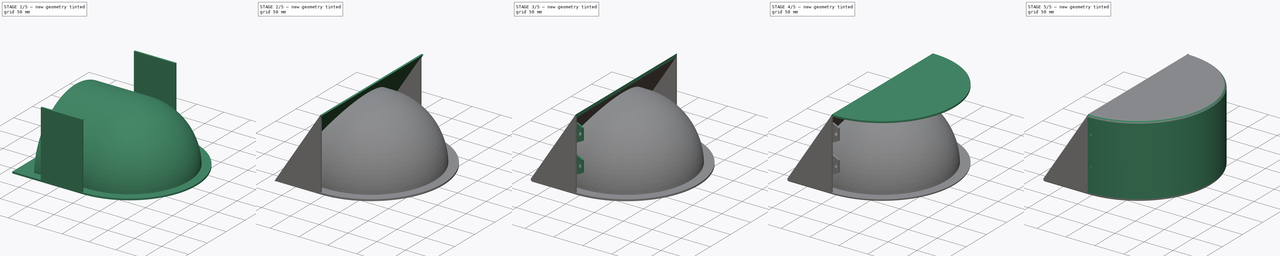
[diagram: build sequence overview — one tinted view per stage of 5, left to right]
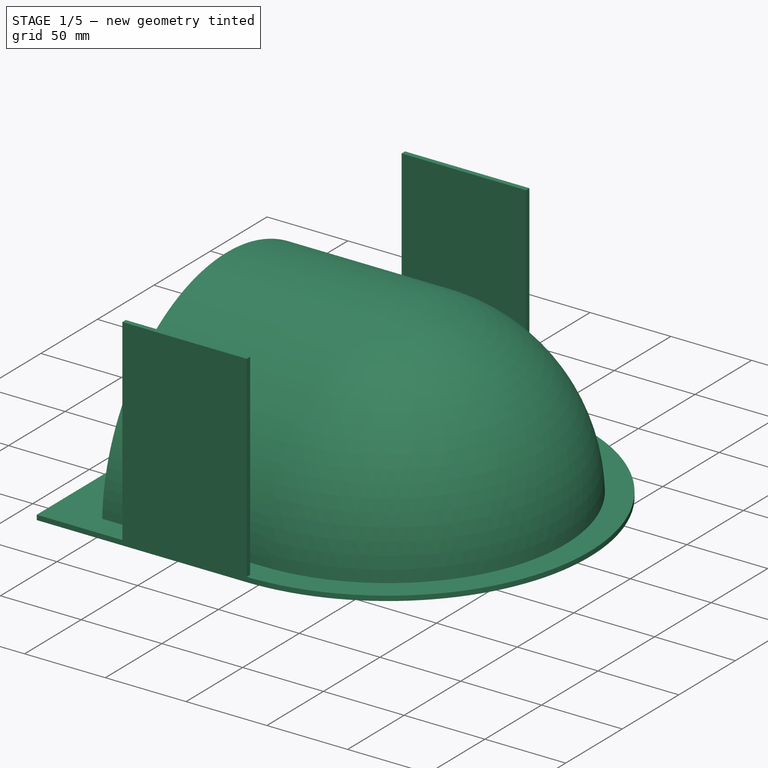
[diagram: stage 1 of 5 — iso view after this stage's code; geometry added in this stage tinted green]
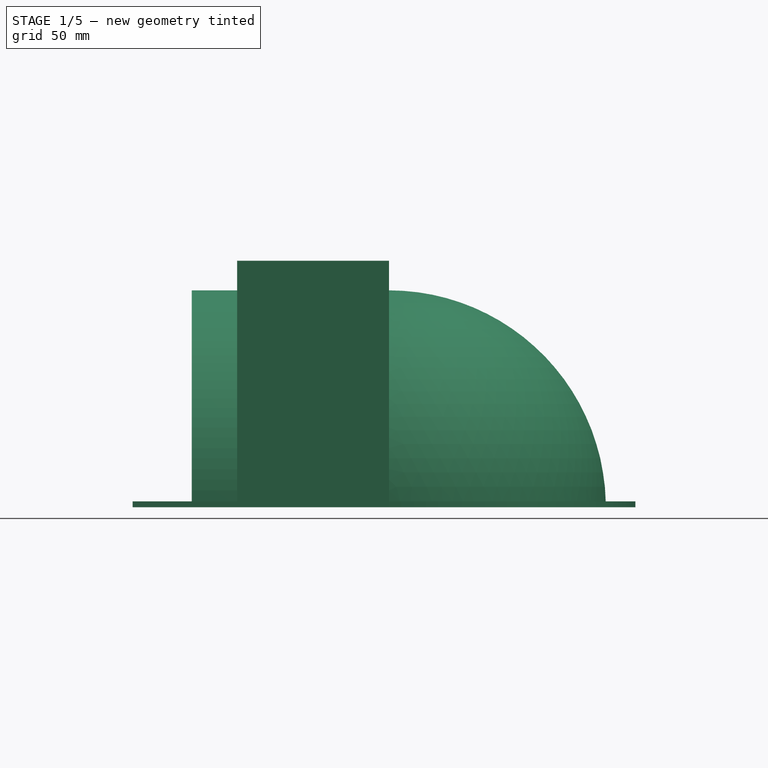
[diagram: stage 1 of 5 — front view after this stage's code; geometry added in this stage tinted green]
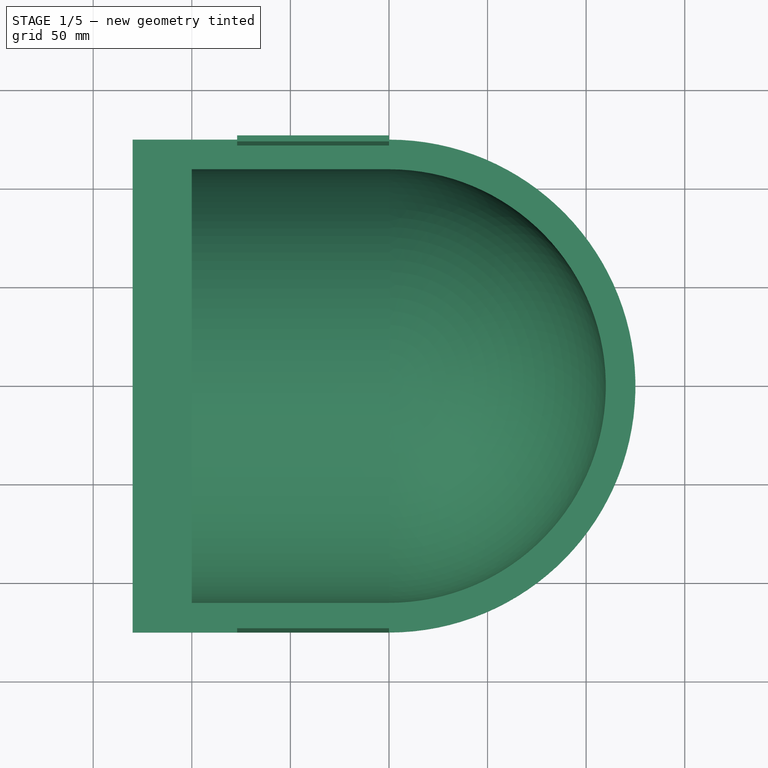
[diagram: stage 1 of 5 — top view after this stage's code; geometry added in this stage tinted green]
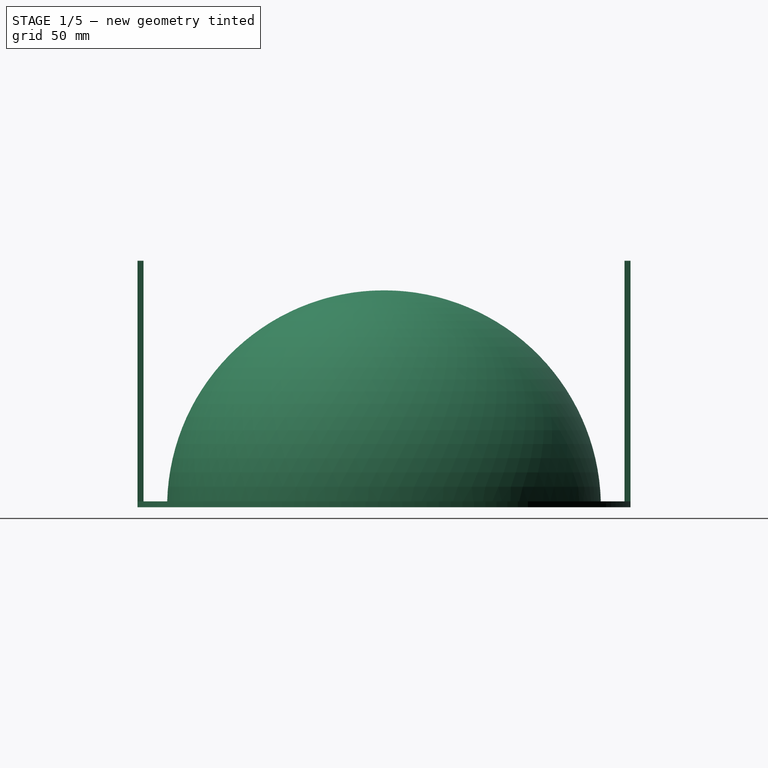
[diagram: stage 1 of 5 — right view after this stage's code; geometry added in this stage tinted green]
FCSTD DOCUMENT  (FreeCAD 0.19R24291 (Git))
Label: test3
License: All rights reserved
LicenseURL: http://en.wikipedia.org/wiki/All_rights_reserved
objects: Sketcher::SketchObject×15, PartDesign::Pad×7, PartDesign::Pocket×5, PartDesign::Fillet×4, PartDesign::Mirrored×3, PartDesign::Body×2, PartDesign::Revolution×1, PartDesign::Plane×1, PartDesign::Groove×1
note: 57 computed .brp shape members not serialized (recipe doc carries the construction recipe); baked Part::Feature solids carry a one-line shape summary decoded from their .brp

FEATURE [Sketcher::SketchObject] Sketch
  FullyConstrained = false
  MapMode = 5
  Placement = pos=(0,0,0) rot=(1,0,0;1.5708rad)
  Support = -> [XZ_Plane]
  sketch-geometry (4):
    g0: ArcOfCircle CenterX=0 CenterY=0 CenterZ=0 NormalX=0 NormalY=0 NormalZ=1 AngleXU=0 Radius=110 StartAngle=0 EndAngle=1.5708
    g1: ArcOfCircle CenterX=0 CenterY=0 CenterZ=0 NormalX=0 NormalY=0 NormalZ=1 AngleXU=0 Radius=107 StartAngle=0.00209071 EndAngle=1.5708
    g2: LineSegment StartX=6.7e-15 StartY=110 StartZ=0 EndX=6.6e-15 EndY=107 EndZ=0
    g3: LineSegment StartX=107 StartY=0.223706 StartZ=0 EndX=110 EndY=0 EndZ=0
  constraints (11):
    c: Coincident(g0,g-1)
    c: PointOnObject(g0,g-1)
    c: PointOnObject(g0,g-2)
    c: Radius(g0) = 110
    c: Coincident(g1,g0)
    c: PointOnObject(g1,g-2)
    c: Radius(g1) = 107
    c: Coincident(g2,g0)
    c: Coincident(g2,g1)
    c: Coincident(g3,g1)
    c: Coincident(g3,g0)
FEATURE [PartDesign::Revolution] Revolution
  Angle = 180
  Axis = (0,2e-16,1)
  Base = (0,0,0)
  Midplane = true
  Placement = pos=(0,0,0) rot=(1,0,0;1.5708rad)
  Profile = -> Sketch
  ReferenceAxis = -> Sketch [V_Axis]
  Refine = true
  Reversed = true
FEATURE [Sketcher::SketchObject] Sketch004
  FullyConstrained = true
  MapMode = 5
  Placement = pos=(0,0,0) rot=(0.57735,0.57735,0.57735;2.0944rad)
  Support = -> [YZ_Plane]
  sketch-geometry (4):
    g0: ArcOfCircle CenterX=0 CenterY=0 CenterZ=0 NormalX=0 NormalY=0 NormalZ=1 AngleXU=0 Radius=107 StartAngle=0 EndAngle=3.14159
    g1: ArcOfCircle CenterX=0 CenterY=0 CenterZ=0 NormalX=0 NormalY=0 NormalZ=1 AngleXU=0 Radius=110 StartAngle=0 EndAngle=3.14159
    g2: LineSegment StartX=107 StartY=0 StartZ=0 EndX=110 EndY=0 EndZ=0
    g3: LineSegment StartX=-107 StartY=1.31e-14 StartZ=0 EndX=-110 EndY=1.35e-14 EndZ=0
  constraints (12):
    c: Coincident(g0,g-1)
    c: PointOnObject(g0,g-1)
    c: PointOnObject(g0,g-1)
    c: Coincident(g1,g0)
    c: PointOnObject(g1,g-1)
    c: PointOnObject(g1,g-1)
    c: Radius(g1) = 110
    c: Radius(g0) = 107
    c: Coincident(g2,g0)
    c: Coincident(g2,g1)
    c: Coincident(g3,g0)
    c: Coincident(g3,g1)
FEATURE [Sketcher::SketchObject] Sketch002
  FullyConstrained = true
  MapMode = 5
  Support = -> [XY_Plane]
  sketch-geometry (4):
    g0: LineSegment StartX=-130 StartY=-125 StartZ=0 EndX=-2.84e-14 EndY=-125 EndZ=0
    g1: ArcOfCircle CenterX=0 CenterY=0 CenterZ=0 NormalX=0 NormalY=0 NormalZ=1 AngleXU=0 Radius=125 StartAngle=4.71239 EndAngle=7.85398
    g2: LineSegment StartX=3.83e-14 StartY=125 StartZ=0 EndX=-130 EndY=125 EndZ=0
    g3: LineSegment StartX=-130 StartY=125 StartZ=0 EndX=-130 EndY=-125 EndZ=0
  constraints (11):
    c: PointOnObject(g0,g-2)
    c: Tangent(g0,g1) = -1.5708
    c: PointOnObject(g1,g-2)
    c: Coincident(g1,g2)
    c: Horizontal(g2)
    c: Coincident(g2,g3)
    c: Coincident(g3,g0)
    c: Vertical(g3)
    c: Coincident(g1,g-1)
    c: DistanceY(g3,g3) = 250
    c: DistanceX(g0,g0) = 130
FEATURE [PartDesign::Pad] Pad  label="Pad_base"
  BaseFeature = -> Revolution
  Direction = (1,1,1)
  Length = 3
  Length2 = 100
  Placement = pos=(0,0,0) rot=(1,0,0;1.5708rad)
  Profile = -> Sketch002
  Refine = true
  Type = 0
FEATURE [PartDesign::Pad] Pad001  label="Pad_tube"
  BaseFeature = -> Pad
  Direction = (1,1,1)
  Length = 100
  Length2 = 100
  Placement = pos=(0,0,0) rot=(1,0,0;1.5708rad)
  Profile = -> Sketch004
  Refine = true
  Reversed = true
  Type = 0
FEATURE [Sketcher::SketchObject] Sketch005
  FullyConstrained = true
  MapMode = 5
  Placement = pos=(0,0,0) rot=(1,0,0;1.5708rad)
  Support = -> [XZ_Plane]
  sketch-geometry (5):
    g0: LineSegment StartX=-160 StartY=140 StartZ=0 EndX=0 EndY=140 EndZ=0
    g1: LineSegment StartX=0 StartY=140 StartZ=0 EndX=0 EndY=125 EndZ=0
    g2: LineSegment StartX=0 StartY=125 StartZ=0 EndX=-80 EndY=0 EndZ=0
    g3: LineSegment StartX=-80 StartY=0 StartZ=0 EndX=-160 EndY=0 EndZ=0
    g4: LineSegment StartX=-160 StartY=0 StartZ=0 EndX=-160 EndY=140 EndZ=0
  constraints (15):
    c: Horizontal(g0)
    c: Coincident(g0,g1)
    c: Vertical(g1)
    c: Coincident(g1,g2)
    c: Coincident(g2,g3)
    c: Horizontal(g3)
    c: Coincident(g3,g4)
    c: Coincident(g4,g0)
    c: Vertical(g4)
    c: Horizontal(g2,g-1)
    c: DistanceX(g2,g-1) = 80
    c: DistanceY(g-1,g1) = 125
    c: DistanceY(g4,g4) = 140
    c: DistanceX(g0,g0) = 160
    c: PointOnObject(g0,g-2)
FEATURE [PartDesign::Plane] DatumPlane
  AttachmentOffset = pos=(0,0,0) rot=(1,0,0;1.5708rad)
  Length = 298.529
  MapMode = 7
  Placement = pos=(0,-2.78e-14,125) rot=(0.659452,0.659452,0.360896;2.4489rad)
  ResizeMode = 0
  Support = -> [Sketch005]
  Width = 284.034
FEATURE [Sketcher::SketchObject] Sketch006
  FullyConstrained = true
  MapMode = 5
  Placement = pos=(7.1e-15,-2.78e-14,125) rot=(0.659452,0.659452,0.360896;2.4489rad)
  Support = -> [DatumPlane]
  sketch-geometry (4):
    g0: LineSegment StartX=-125 StartY=30 StartZ=0 EndX=125 EndY=30 EndZ=0
    g1: LineSegment StartX=125 StartY=30 StartZ=0 EndX=125 EndY=-190 EndZ=0
    g2: LineSegment StartX=125 StartY=-190 StartZ=0 EndX=-125 EndY=-190 EndZ=0
    g3: LineSegment StartX=-125 StartY=-190 StartZ=0 EndX=-125 EndY=30 EndZ=0
  constraints (11):
    c: Coincident(g0,g1)
    c: Coincident(g1,g2)
    c: Coincident(g2,g3)
    c: Coincident(g3,g0)
    c: Horizontal(g2)
    c: Vertical(g1)
    c: Vertical(g3)
    c: Symmetric(g0,g0,g-2)
    c: DistanceY(g3,g3) = 220
    c: DistanceX(g0,g0) = 250
    c: DistanceY(g-1,g0) = 30
FEATURE [Sketcher::SketchObject] Sketch009
  FullyConstrained = true
  MapMode = 5
  Support = -> [XY_Plane]
  sketch-geometry (4):
    g0: LineSegment StartX=107 StartY=-2.62e-14 StartZ=0 EndX=-200 EndY=-2.62e-14 EndZ=0
    g1: LineSegment StartX=-200 StartY=-2.62e-14 StartZ=0 EndX=-200 EndY=-107 EndZ=0
    g2: LineSegment StartX=-200 StartY=-107 StartZ=0 EndX=1.705e-13 EndY=-107 EndZ=0
    g3: ArcOfCircle CenterX=0 CenterY=0 CenterZ=0 NormalX=0 NormalY=0 NormalZ=1 AngleXU=0 Radius=107 StartAngle=4.71239 EndAngle=6.28319
  constraints (12):
    c: PointOnObject(g0,g-1)
    c: Horizontal(g0)
    c: Coincident(g0,g1)
    c: Vertical(g1)
    c: Coincident(g1,g2)
    c: Horizontal(g2)
    c: Tangent(g2,g3) = -1.5708
    c: Coincident(g3,g0)
    c: DistanceY(g1,g1) = 107
    c: PointOnObject(g2,g-2)
    c: PointOnObject(g3,g-1)
    c: DistanceX(g2,g2) = 200
FEATURE [Sketcher::SketchObject] Sketch011
  FullyConstrained = true
  MapMode = 5
  Support = -> [XY_Plane]
  sketch-geometry (8):
    g0: LineSegment StartX=-77 StartY=125 StartZ=0 EndX=0 EndY=125 EndZ=0
    g1: LineSegment StartX=0 StartY=125 StartZ=0 EndX=0 EndY=122 EndZ=0
    g2: LineSegment StartX=0 StartY=122 StartZ=0 EndX=-77 EndY=122 EndZ=0
    g3: LineSegment StartX=-77 StartY=122 StartZ=0 EndX=-77 EndY=125 EndZ=0
    g4: LineSegment StartX=-77 StartY=-122 StartZ=0 EndX=0 EndY=-122 EndZ=0
    g5: LineSegment StartX=0 StartY=-122 StartZ=0 EndX=0 EndY=-125 EndZ=0
    g6: LineSegment StartX=0 StartY=-125 StartZ=0 EndX=-77 EndY=-125 EndZ=0
    g7: LineSegment StartX=-77 StartY=-125 StartZ=0 EndX=-77 EndY=-122 EndZ=0
  constraints (24):
    c: Coincident(g0,g1)
    c: Coincident(g1,g2)
    c: Coincident(g2,g3)
    c: Coincident(g3,g0)
    c: Horizontal(g0)
    c: Horizontal(g2)
    c: Vertical(g1)
    c: Vertical(g3)
    c: PointOnObject(g1,g-2)
    c: DistanceY(g3,g3) = 3
    c: Coincident(g4,g5)
    c: Coincident(g5,g6)
    c: Coincident(g6,g7)
    c: Coincident(g7,g4)
    c: Horizontal(g4)
    c: Horizontal(g6)
    c: Vertical(g5)
    c: Vertical(g7)
    c: PointOnObject(g5,g-2)
    c: DistanceY(g7,g7) = 3
    c: DistanceX(g6,g6) = 77
    c: DistanceX(g0,g0) = 77
    c: DistanceY(g-1,g0) = 125
    c: DistanceY(g5,g-1) = 125
FEATURE [PartDesign::Pad] Pad003
  BaseFeature = -> Pad001
  Direction = (1,1,1)
  Length = 125
  Length2 = 100
  Placement = pos=(0,0,0) rot=(1,0,0;1.5708rad)
  Profile = -> Sketch011
  Refine = true
  Type = 0
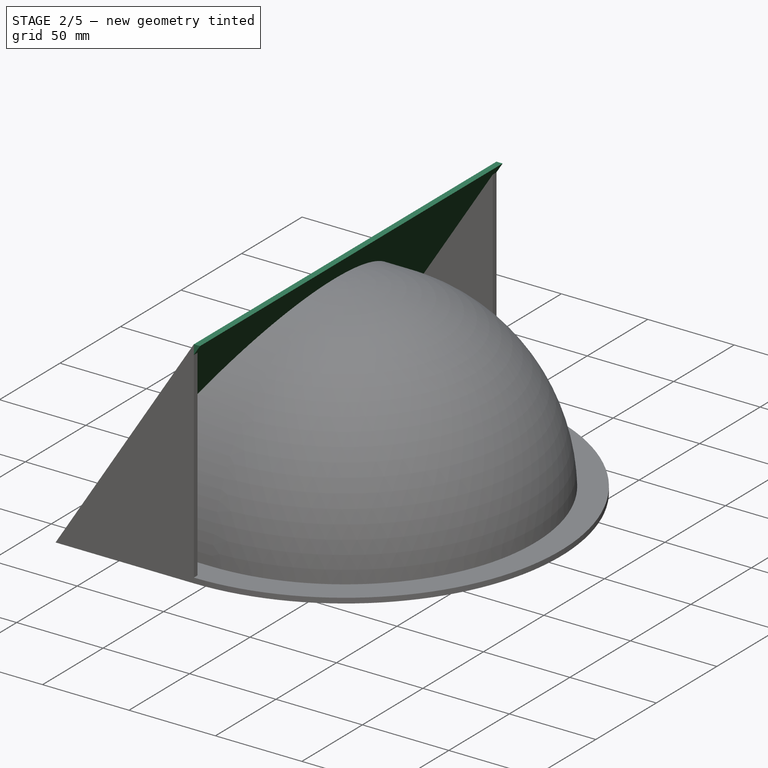
[diagram: stage 2 of 5 — iso view after this stage's code; geometry added in this stage tinted green]
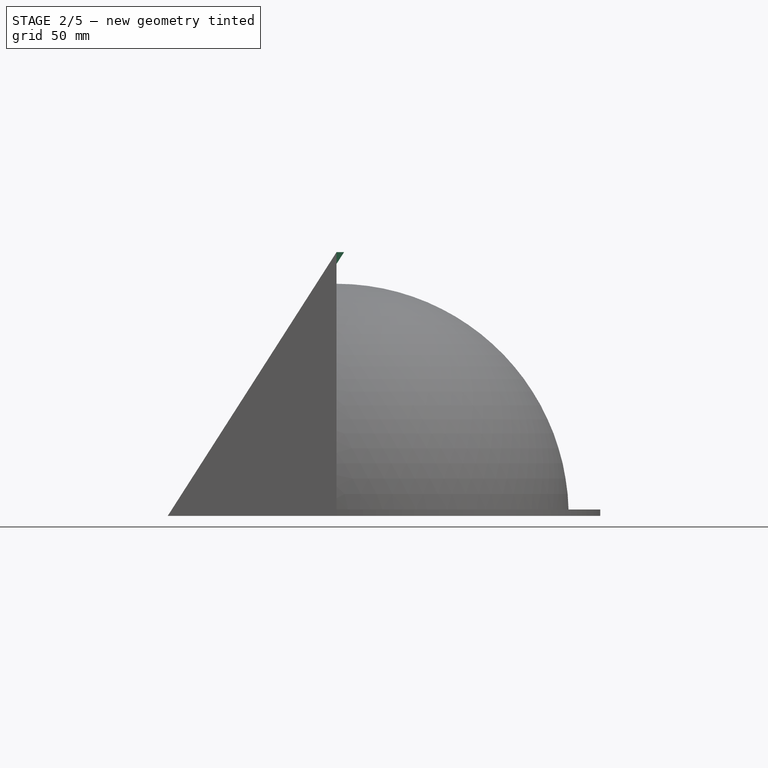
[diagram: stage 2 of 5 — front view after this stage's code; geometry added in this stage tinted green]
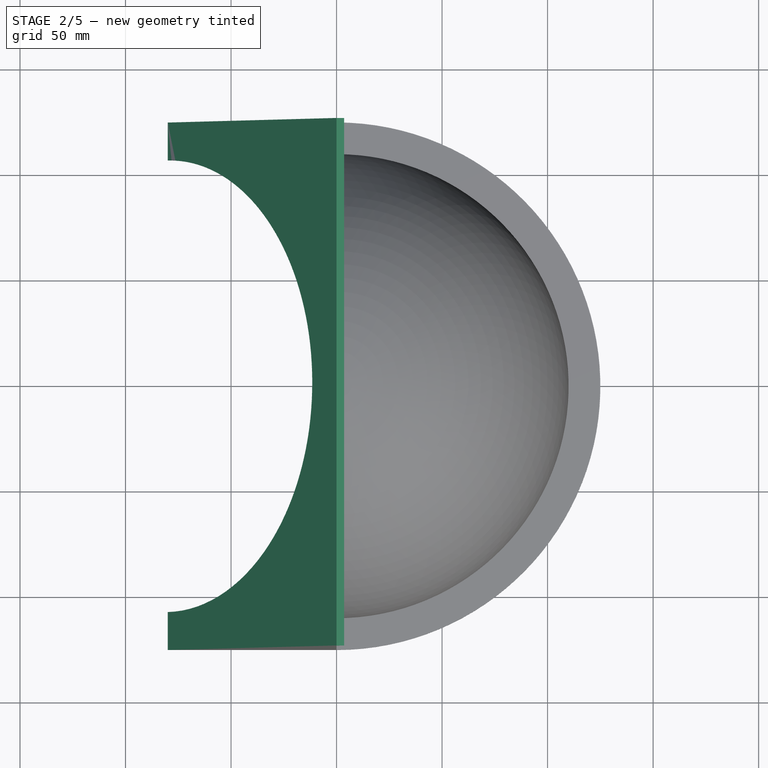
[diagram: stage 2 of 5 — top view after this stage's code; geometry added in this stage tinted green]
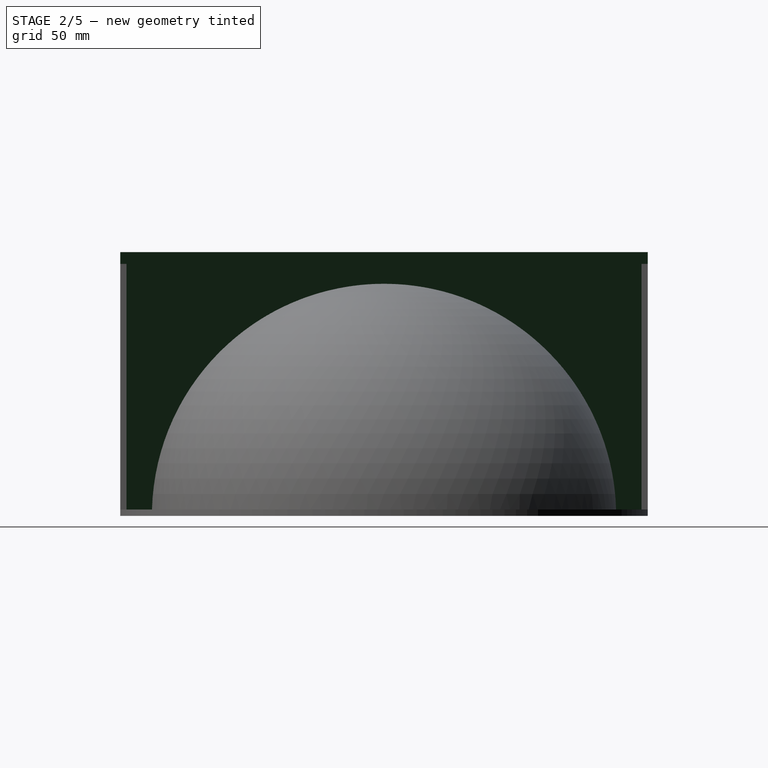
[diagram: stage 2 of 5 — right view after this stage's code; geometry added in this stage tinted green]
FEATURE [PartDesign::Pad] Pad002  label="Pad_angled_plane"
  BaseFeature = -> Pad003
  Direction = (1,1,1)
  Length = 3
  Length2 = 100
  Placement = pos=(0,0,0) rot=(1,0,0;1.5708rad)
  Profile = -> Sketch006
  Refine = true
  Type = 0
FEATURE [Sketcher::SketchObject] Sketch012
  FullyConstrained = true
  MapMode = 5
  Placement = pos=(0,0,0) rot=(0.57735,0.57735,0.57735;2.0944rad)
  Support = -> [YZ_Plane]
  sketch-geometry (2):
    g0: ArcOfCircle CenterX=0 CenterY=0 CenterZ=0 NormalX=0 NormalY=0 NormalZ=1 AngleXU=0 Radius=107 StartAngle=0 EndAngle=3.14159
    g1: LineSegment StartX=107 StartY=0 StartZ=0 EndX=-107 EndY=-5.13534e-11 EndZ=0
  constraints (6):
    c: Coincident(g0,g-1)
    c: PointOnObject(g0,g-1)
    c: PointOnObject(g0,g-1)
    c: Radius(g0) = 107
    c: Coincident(g1,g0)
    c: Coincident(g1,g0)
FEATURE [PartDesign::Pocket] Pocket003
  BaseFeature = -> Pad002
  Length = 150
  Length2 = 100
  Placement = pos=(0,0,0) rot=(1,0,0;1.5708rad)
  Profile = -> Sketch012
  Refine = true
  Type = 0
FEATURE [PartDesign::Groove] Groove
  Angle = 360
  Axis = (1,0,0)
  Base = (0,0,0)
  BaseFeature = -> Pocket003
  Placement = pos=(0,0,0) rot=(1,0,0;1.5708rad)
  Profile = -> Sketch009
  ReferenceAxis = -> X_Axis
  Refine = true
FEATURE [Sketcher::SketchObject] Sketch013
  FullyConstrained = false
  MapMode = 5
  Placement = pos=(0,0,0) rot=(1,0,0;1.5708rad)
  Support = -> [XZ_Plane]
  sketch-geometry (8):
    g0: LineSegment StartX=-70 StartY=-67.252 StartZ=0 EndX=-198.395 EndY=-67.252 EndZ=0
    g1: LineSegment StartX=-198.395 StartY=-67.252 StartZ=0 EndX=-198.395 EndY=156.771 EndZ=0
    g2: LineSegment StartX=-198.395 StartY=156.771 StartZ=0 EndX=56.7411 EndY=156.771 EndZ=0
    g3: LineSegment StartX=0 StartY=125 StartZ=0 EndX=-80 EndY=0 EndZ=0
    g4: LineSegment StartX=0 StartY=125 StartZ=0 EndX=56.7411 EndY=125 EndZ=0
    g5: LineSegment StartX=56.7411 StartY=125 StartZ=0 EndX=56.7411 EndY=156.771 EndZ=0
    g6: LineSegment StartX=-80 StartY=0 StartZ=0 EndX=-70 EndY=0 EndZ=0
    g7: LineSegment StartX=-70 StartY=0 StartZ=0 EndX=-70 EndY=-67.252 EndZ=0
  constraints (20):
    c: Horizontal(g0)
    c: Coincident(g0,g1)
    c: Vertical(g1)
    c: Coincident(g1,g2)
    c: Horizontal(g2)
    c: PointOnObject(g3,g-2)
    c: DistanceY(g-1,g3) = 125
    c: Coincident(g3,g4)
    c: Coincident(g4,g5)
    c: Vertical(g5)
    c: Horizontal(g4)
    c: Coincident(g2,g5)
    c: PointOnObject(g3,g-1)
    c: Coincident(g3,g6)
    c: PointOnObject(g6,g-1)
    c: Coincident(g6,g7)
    c: Coincident(g7,g0)
    c: Vertical(g7)
    c: DistanceX(g3,g-1) = 80
    c: DistanceX(g6,g6) = 10
FEATURE [PartDesign::Pocket] Pocket
  BaseFeature = -> Groove
  Length = 500
  Length2 = 100
  Midplane = true
  Placement = pos=(0,0,0) rot=(1,0,0;1.5708rad)
  Profile = -> Sketch013
  Refine = true
  Type = 0
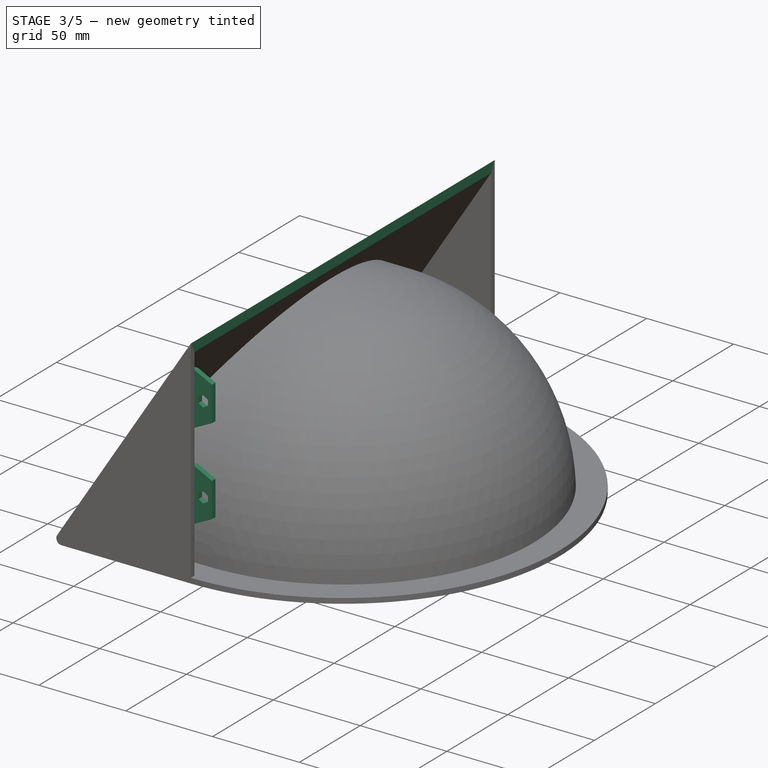
[diagram: stage 3 of 5 — iso view after this stage's code; geometry added in this stage tinted green]
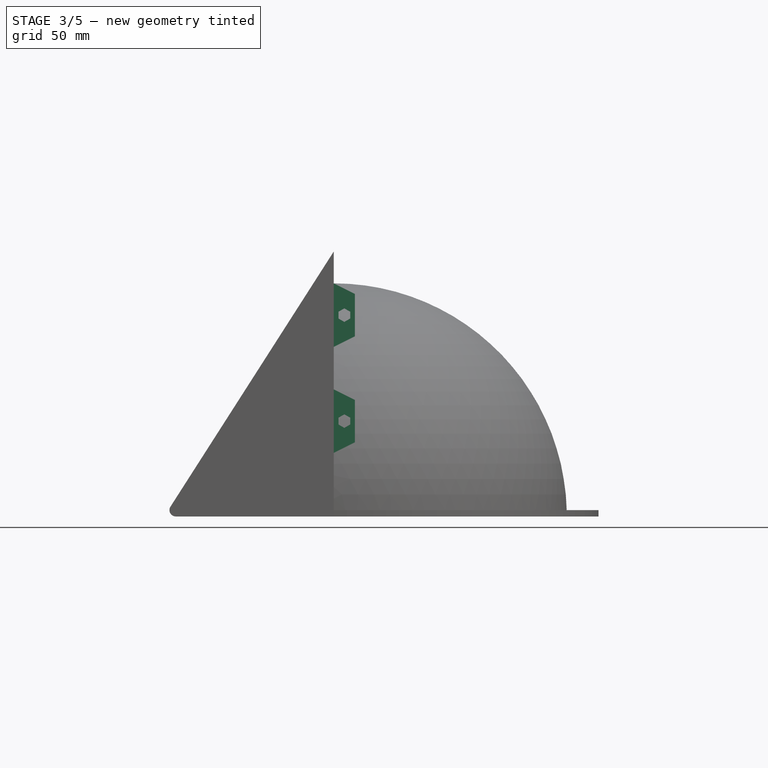
[diagram: stage 3 of 5 — front view after this stage's code; geometry added in this stage tinted green]
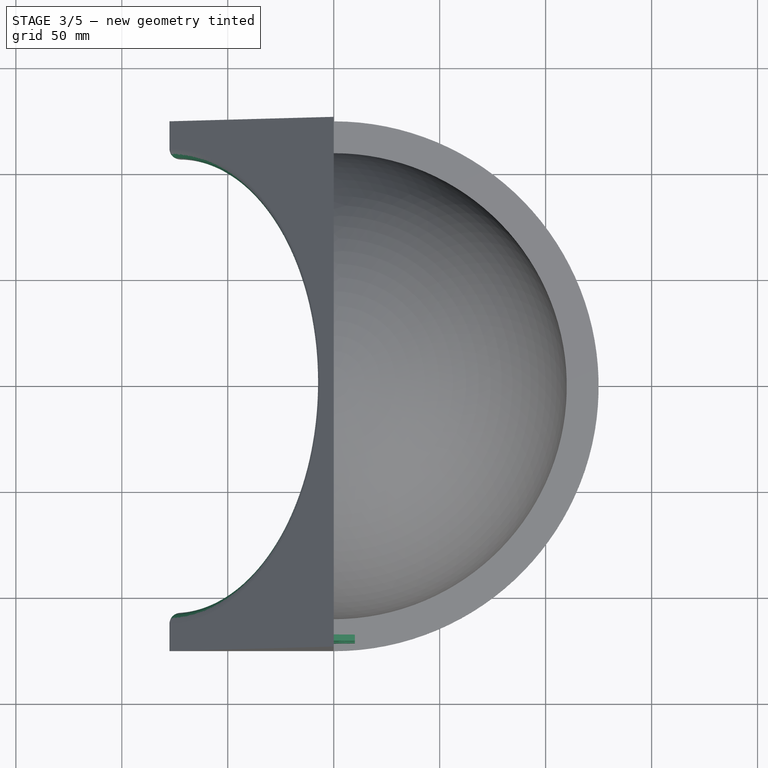
[diagram: stage 3 of 5 — top view after this stage's code; geometry added in this stage tinted green]
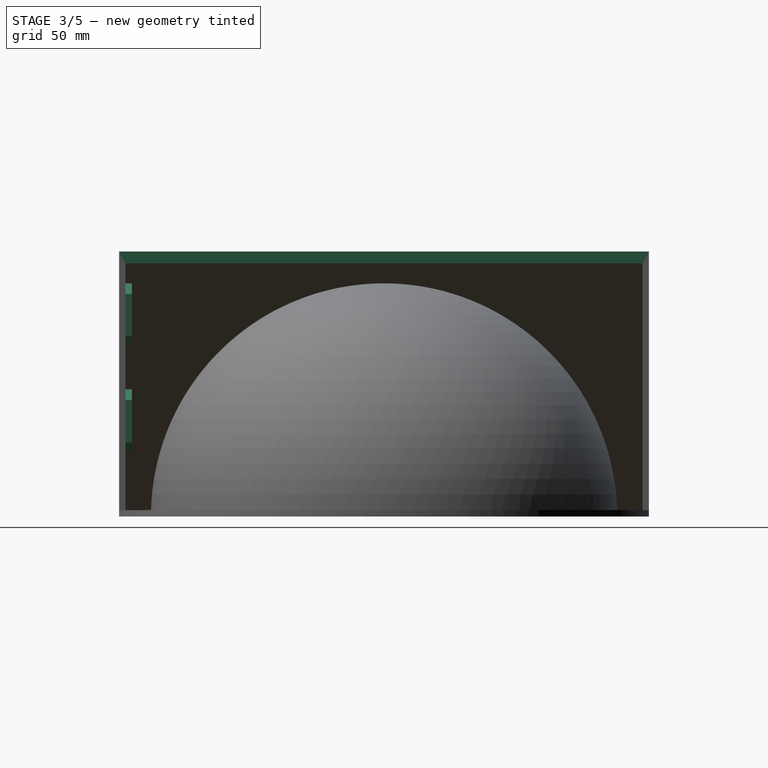
[diagram: stage 3 of 5 — right view after this stage's code; geometry added in this stage tinted green]
FEATURE [Sketcher::SketchObject] Sketch014
  AttachmentOffset = pos=(0,0,125) rot=(0,0,1;0rad)
  FullyConstrained = true
  MapMode = 5
  Placement = pos=(0,0,125) rot=(0,0,1;0rad)
  Support = -> [XY_Plane]
  sketch-geometry (4):
    g0: LineSegment StartX=20 StartY=140 StartZ=0 EndX=0 EndY=140 EndZ=0
    g1: LineSegment StartX=0 StartY=140 StartZ=0 EndX=-7.1e-15 EndY=-140 EndZ=0
    g2: LineSegment StartX=-7.1e-15 StartY=-140 StartZ=0 EndX=20 EndY=-140 EndZ=0
    g3: LineSegment StartX=20 StartY=-140 StartZ=0 EndX=20 EndY=140 EndZ=0
  constraints (11):
    c: Coincident(g0,g1)
    c: Coincident(g1,g2)
    c: Coincident(g2,g3)
    c: Coincident(g3,g0)
    c: Horizontal(g0)
    c: Horizontal(g2)
    c: Vertical(g3)
    c: DistanceX(g0,g0) = 20
    c: DistanceY(g3,g3) = 280
    c: Symmetric(g0,g1,g-1)
    c: PointOnObject(g0,g-2)
FEATURE [PartDesign::Pocket] Pocket004
  BaseFeature = -> Pocket
  Length = 10
  Length2 = 100
  Placement = pos=(0,0,0) rot=(1,0,0;1.5708rad)
  Profile = -> Sketch014
  Refine = true
  Type = 0
FEATURE [PartDesign::Fillet] Fillet
  Base = -> Pocket004 [Edge15]
  BaseFeature = -> Pocket004
  Placement = pos=(0,0,0) rot=(1,0,0;1.5708rad)
  Radius = 5
  Refine = true
  SupportTransform = false
FEATURE [PartDesign::Fillet] Fillet001
  Base = -> Fillet [Edge16,Edge10]
  BaseFeature = -> Fillet
  Placement = pos=(0,0,0) rot=(1,0,0;1.5708rad)
  Radius = 3
  Refine = true
  SupportTransform = false
FEATURE [Sketcher::SketchObject] Sketch015
  AttachmentOffset = pos=(0,0,122) rot=(0,0,1;0rad)
  FullyConstrained = true
  MapMode = 5
  Placement = pos=(0,-122,-2.71e-14) rot=(1,0,0;1.5708rad)
  Support = -> [XZ_Plane]
  sketch-geometry (12):
    g0: LineSegment StartX=0 StartY=110 StartZ=0 EndX=10 EndY=105 EndZ=0
    g1: LineSegment StartX=10 StartY=105 StartZ=0 EndX=10 EndY=85 EndZ=0
    g2: LineSegment StartX=10 StartY=85 StartZ=0 EndX=0 EndY=80 EndZ=0
    g3: LineSegment StartX=0 StartY=60 StartZ=0 EndX=10 EndY=55 EndZ=0
    g4: LineSegment StartX=10 StartY=55 StartZ=0 EndX=10 EndY=35 EndZ=0
    g5: LineSegment StartX=10 StartY=35 StartZ=0 EndX=0 EndY=30 EndZ=0
    g6: LineSegment StartX=0 StartY=60 StartZ=0 EndX=-5 EndY=60 EndZ=0
    g7: LineSegment StartX=-5 StartY=60 StartZ=0 EndX=-5 EndY=30 EndZ=0
    g8: LineSegment StartX=-5 StartY=30 StartZ=0 EndX=0 EndY=30 EndZ=0
    g9: LineSegment StartX=0 StartY=80 StartZ=0 EndX=-5 EndY=80 EndZ=0
    g10: LineSegment StartX=-5 StartY=80 StartZ=0 EndX=-5 EndY=110 EndZ=0
    g11: LineSegment StartX=-5 StartY=110 StartZ=0 EndX=0 EndY=110 EndZ=0
  constraints (36):
    c: Coincident(g0,g1)
    c: Coincident(g1,g2)
    c: PointOnObject(g3,g-2)
    c: Coincident(g3,g4)
    c: Vertical(g4)
    c: Coincident(g4,g5)
    c: Vertical(g1)
    c: PointOnObject(g0,g-2)
    c: DistanceY(g1,g1) = 20
    c: DistanceY(g2,g0) = 30
    c: DistanceY(g5,g3) = 30
    c: DistanceY(g4,g4) = 20
    c: DistanceX(g-1,g4) = 10
    c: DistanceX(g2,g1) = 10
    c: DistanceY(g0,g0) = 5
    c: DistanceY(g3,g3) = 5
    c: DistanceY(g-1,g5) = 30
    c: DistanceY(g2) = 80
    c: Coincident(g3,g6)
    c: Horizontal(g6)
    c: Coincident(g6,g7)
    c: Vertical(g7)
    c: Coincident(g7,g8)
    c: Coincident(g8,g5)
    c: Horizontal(g8)
    c: Coincident(g2,g9)
    c: Horizontal(g9)
    c: Coincident(g9,g10)
    c: Vertical(g10)
    c: Coincident(g10,g11)
    c: Coincident(g11,g0)
    c: Horizontal(g11)
    c: PointOnObject(g5,g-2)
    c: DistanceX(g8,g8) = 5
    c: PointOnObject(g2,g-2)
    c: DistanceX(g9,g9) = 5
FEATURE [PartDesign::Pad] Pad004
  BaseFeature = -> Fillet001
  Direction = (1,1,1)
  Length = 3
  Length2 = 100
  Placement = pos=(0,0,0) rot=(1,0,0;1.5708rad)
  Profile = -> Sketch015
  Refine = true
  Reversed = true
  Type = 0
FEATURE [Sketcher::SketchObject] Sketch016
  AttachmentOffset = pos=(0,0,122) rot=(0,0,1;0rad)
  ExternalGeometry = -> [Pad004]
  FullyConstrained = false
  MapMode = 5
  Placement = pos=(0,-122,-2.71e-14) rot=(1,0,0;1.5708rad)
  Support = -> [XZ_Plane]
  sketch-geometry (14):
    g0: LineSegment StartX=7.77128 StartY=93.4 StartZ=0 EndX=7.77128 EndY=96.6 EndZ=0
    g1: LineSegment StartX=7.77128 StartY=96.6 StartZ=0 EndX=5 EndY=98.2 EndZ=0
    g2: LineSegment StartX=5 StartY=98.2 StartZ=0 EndX=2.22872 EndY=96.6 EndZ=0
    g3: LineSegment StartX=2.22872 StartY=96.6 StartZ=0 EndX=2.22872 EndY=93.4 EndZ=0
    g4: LineSegment StartX=2.22872 StartY=93.4 StartZ=0 EndX=5 EndY=91.8 EndZ=0
    g5: LineSegment StartX=5 StartY=91.8 StartZ=0 EndX=7.77128 EndY=93.4 EndZ=0
    g6: Circle CenterX=5 CenterY=95 CenterZ=0 NormalX=0 NormalY=0 NormalZ=1 AngleXU=0 Radius=3.2
    g7: LineSegment StartX=5 StartY=41.8 StartZ=0 EndX=7.77128 EndY=43.4 EndZ=0
    g8: LineSegment StartX=7.77128 StartY=43.4 StartZ=0 EndX=7.77128 EndY=46.6 EndZ=0
    g9: LineSegment StartX=7.77128 StartY=46.6 StartZ=0 EndX=5 EndY=48.2 EndZ=0
    g10: LineSegment StartX=5 StartY=48.2 StartZ=0 EndX=2.22872 EndY=46.6 EndZ=0
    g11: LineSegment StartX=2.22872 StartY=46.6 StartZ=0 EndX=2.22872 EndY=43.4 EndZ=0
    g12: LineSegment StartX=2.22872 StartY=43.4 StartZ=0 EndX=5 EndY=41.8 EndZ=0
    g13: Circle CenterX=5 CenterY=45 CenterZ=0 NormalX=0 NormalY=0 NormalZ=1 AngleXU=0 Radius=3.2
  constraints (32):
    c: Coincident(g0,g1)
    c: Coincident(g1,g2)
    c: Coincident(g2,g3)
    c: Coincident(g3,g4)
    c: Coincident(g4,g5)
    c: Coincident(g5,g0)
    c: Equal(g0, g1-g5) x5
    c: PointOnObject(g0,g6)
    c: PointOnObject(g1,g6)
    c: PointOnObject(g2,g6)
    c: PointOnObject(g3,g6)
    c: PointOnObject(g4,g6)
    c: PointOnObject(g5,g6)
    c: Radius(g6) = 3.2
    c: Vertical(g3)
    c: Coincident(g7,g8)
    c: Coincident(g8,g9)
    c: Coincident(g9,g10)
    c: Coincident(g10,g11)
    c: Coincident(g11,g12)
    c: Coincident(g12,g7)
    c: Equal(g7, g8-g12) x5
    c: PointOnObject(g7,g13)
    c: PointOnObject(g8,g13)
    c: PointOnObject(g9,g13)
    c: PointOnObject(g10,g13)
    c: PointOnObject(g11,g13)
    c: PointOnObject(g12,g13)
    c: Vertical(g8)
    c: Radius(g13) = 3.2
    c: DistanceY(g-3,g13) = 10
    c: DistanceX(g13,g-3) = 5
FEATURE [PartDesign::Pocket] Pocket005
  BaseFeature = -> Pad004
  Length = 3
  Length2 = 100
  Placement = pos=(0,0,0) rot=(1,0,0;1.5708rad)
  Profile = -> Sketch016
  Refine = true
  Type = 0
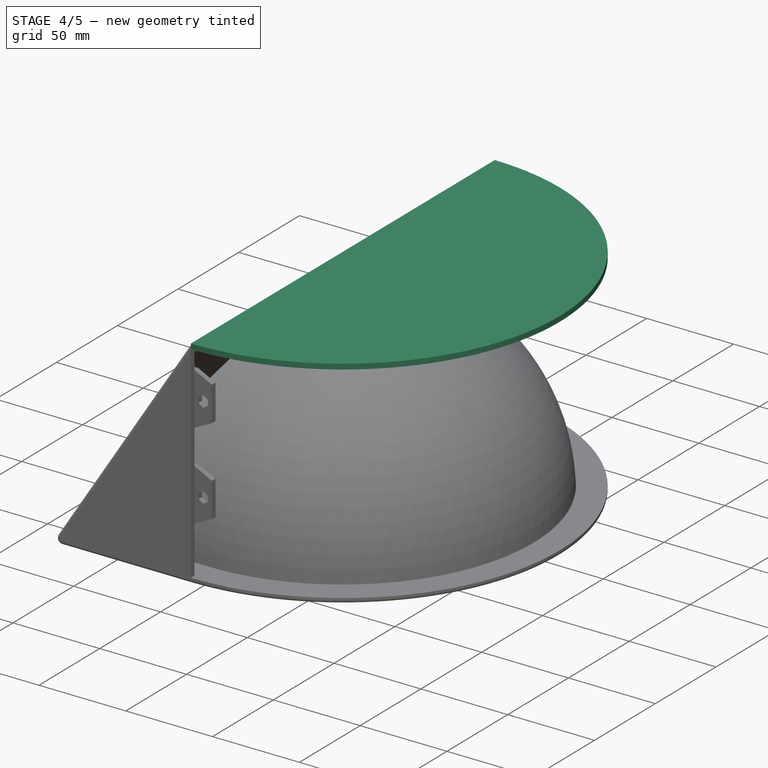
[diagram: stage 4 of 5 — iso view after this stage's code; geometry added in this stage tinted green]
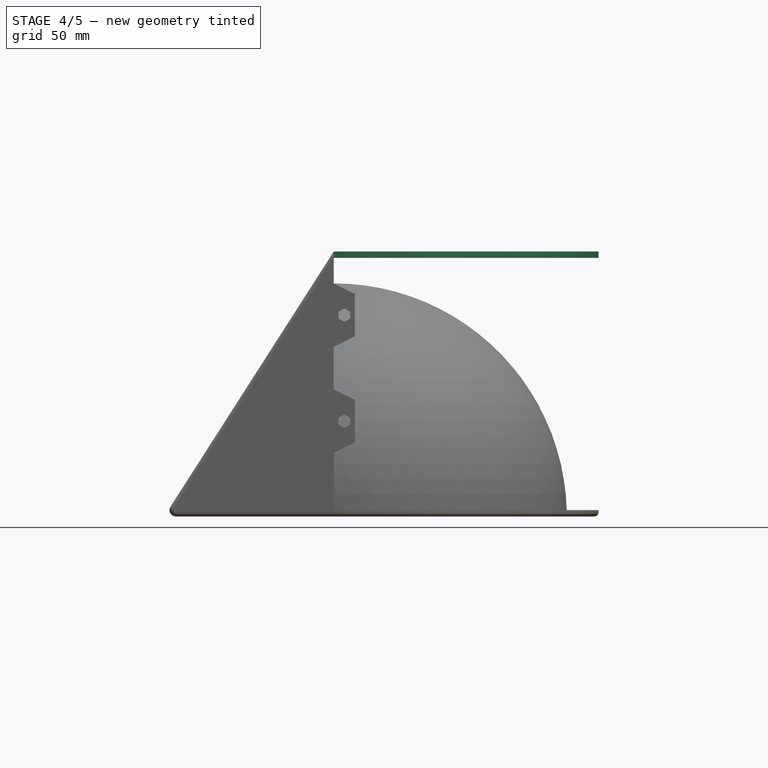
[diagram: stage 4 of 5 — front view after this stage's code; geometry added in this stage tinted green]
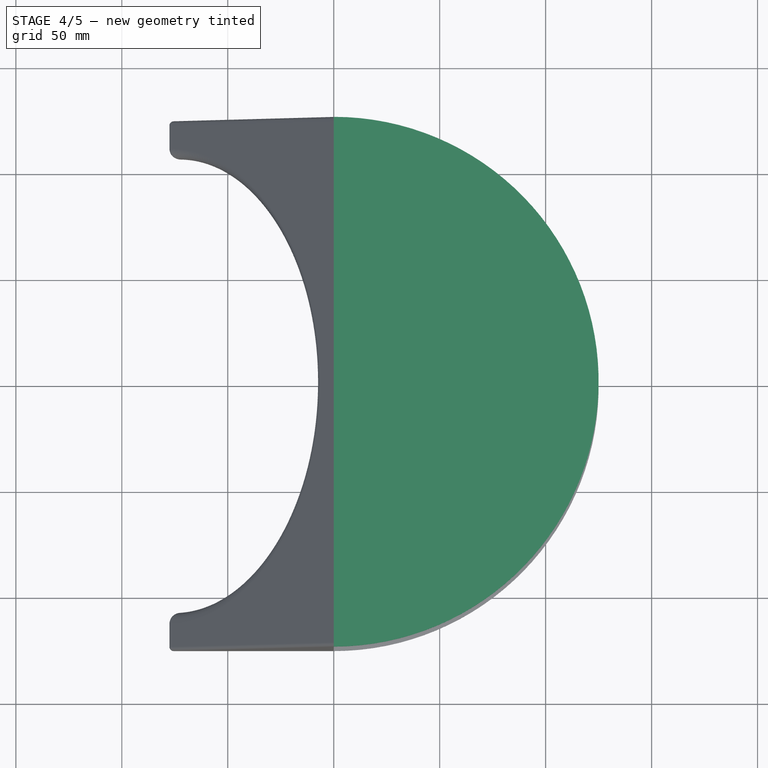
[diagram: stage 4 of 5 — top view after this stage's code; geometry added in this stage tinted green]
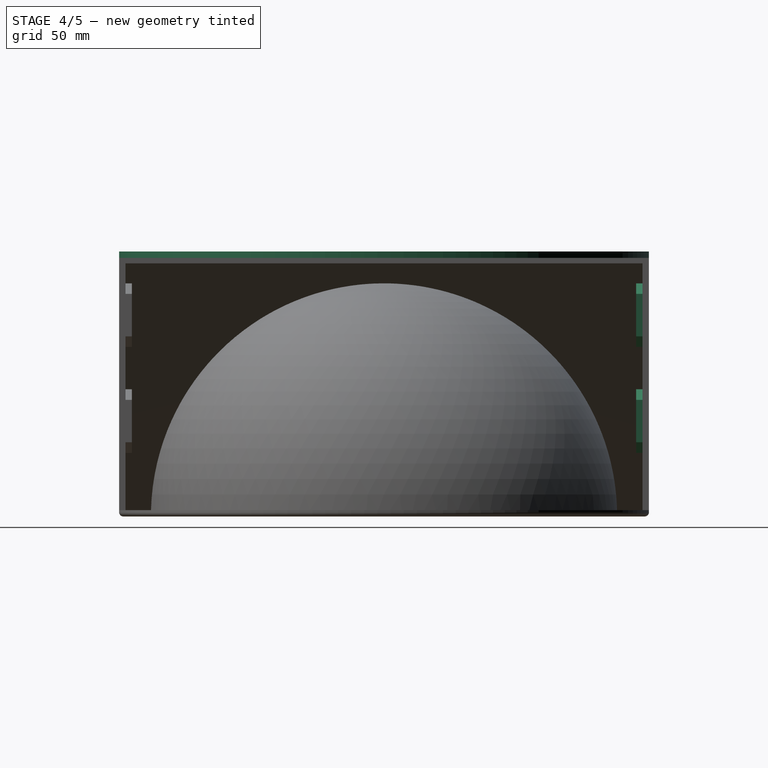
[diagram: stage 4 of 5 — right view after this stage's code; geometry added in this stage tinted green]
FEATURE [PartDesign::Mirrored] Mirrored
  BaseFeature = -> Pocket005
  MirrorPlane = -> XZ_Plane
  Originals = -> [Pad004]
  Placement = pos=(0,0,0) rot=(1,0,0;1.5708rad)
  Refine = true
FEATURE [PartDesign::Mirrored] Mirrored001
  BaseFeature = -> Mirrored
  MirrorPlane = -> XZ_Plane
  Originals = -> [Pocket005]
  Placement = pos=(0,0,0) rot=(1,0,0;1.5708rad)
  Refine = true
FEATURE [Sketcher::SketchObject] Sketch017
  AttachmentOffset = pos=(0,0,125) rot=(0,0,1;0rad)
  FullyConstrained = true
  MapMode = 5
  Placement = pos=(0,0,125) rot=(0,0,1;0rad)
  Support = -> [XY_Plane001]
  sketch-geometry (2):
    g0: ArcOfCircle CenterX=0 CenterY=0 CenterZ=0 NormalX=0 NormalY=0 NormalZ=1 AngleXU=0 Radius=125 StartAngle=4.71239 EndAngle=7.85398
    g1: LineSegment StartX=3.83e-14 StartY=125 StartZ=0 EndX=-2.3e-14 EndY=-125 EndZ=0
  constraints (6):
    c: Coincident(g0,g-1)
    c: PointOnObject(g0,g-2)
    c: PointOnObject(g0,g-2)
    c: Coincident(g1,g0)
    c: Coincident(g1,g0)
    c: Radius(g0) = 125
FEATURE [PartDesign::Pad] Pad005  label="Pad_top_cover"
  Direction = (1,1,1)
  Length = 3
  Length2 = 100
  Profile = -> Sketch017
  Refine = true
  Reversed = true
  Type = 0
FEATURE [PartDesign::Body] Body001  label="Cover"
  Group = -> [Sketch017,Pad005,Sketch018,Pad006,Sketch019,Pocket006,Mirrored002,Fillet002]
  Origin = -> Origin001
  Tip = -> Fillet002
FEATURE [PartDesign::Fillet] Fillet003
  Base = -> Mirrored001 [Edge26,Edge27]
  BaseFeature = -> Mirrored001
  Placement = pos=(0,0,0) rot=(1,0,0;1.5708rad)
  Radius = 2
  Refine = true
  SupportTransform = false
FEATURE [PartDesign::Body] Body
  Group = -> [Sketch,Revolution,Pad,Pad001,Pad003,Sketch004,Sketch002,Sketch005,DatumPlane,Sketch006,Pad002,Pocket003,Sketch012,Sketch009,Groove,Sketch011,Sketch013,Pocket,Sketch014,Pocket004,Fillet,Fillet001,Sketch015,Pad004,Sketch016,Pocket005,Mirrored,Mirrored001,Fillet003]
  Origin = -> Origin
  Tip = -> Fillet003
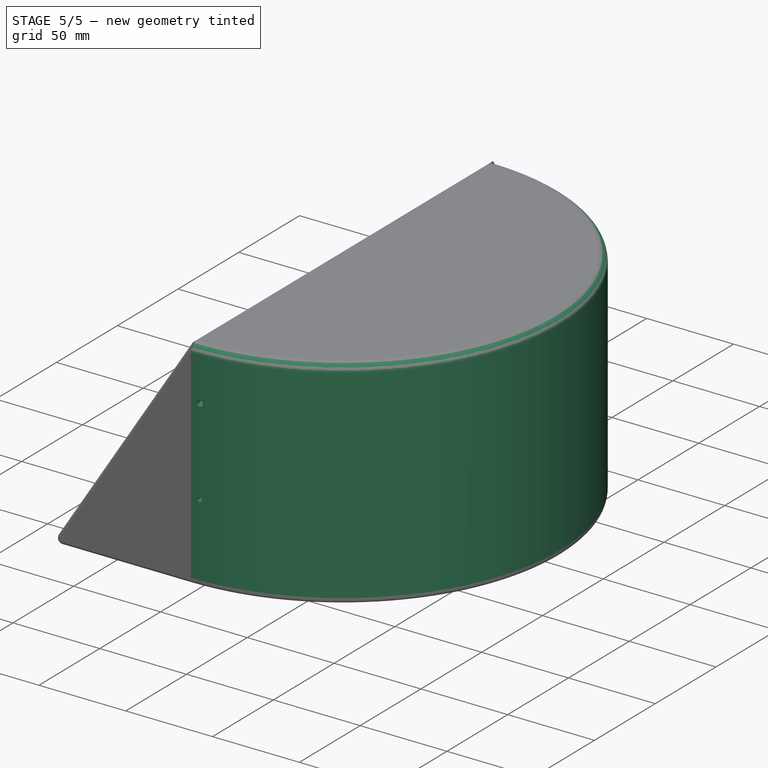
[diagram: stage 5 of 5 — iso view after this stage's code; geometry added in this stage tinted green]
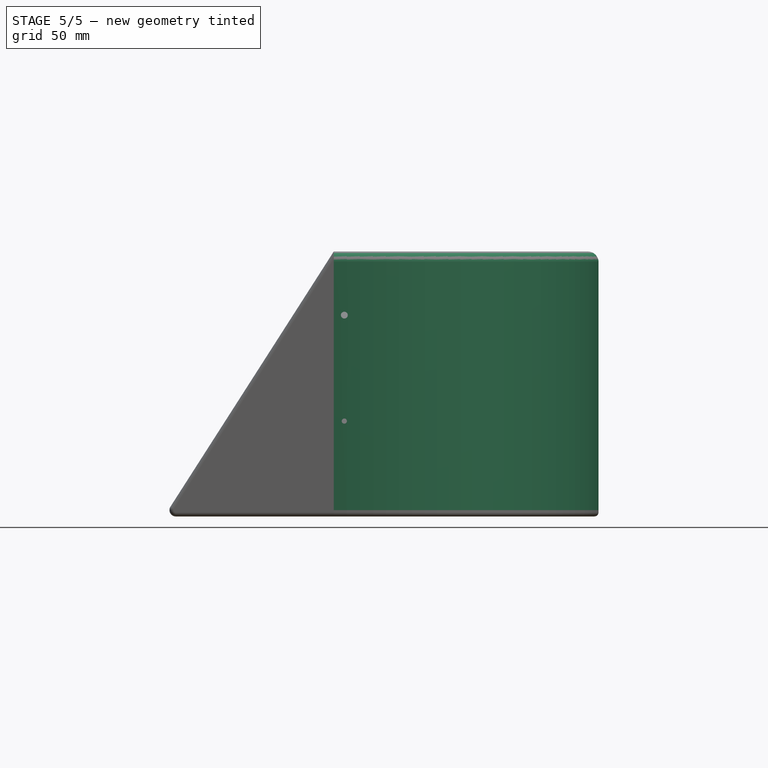
[diagram: stage 5 of 5 — front view after this stage's code; geometry added in this stage tinted green]
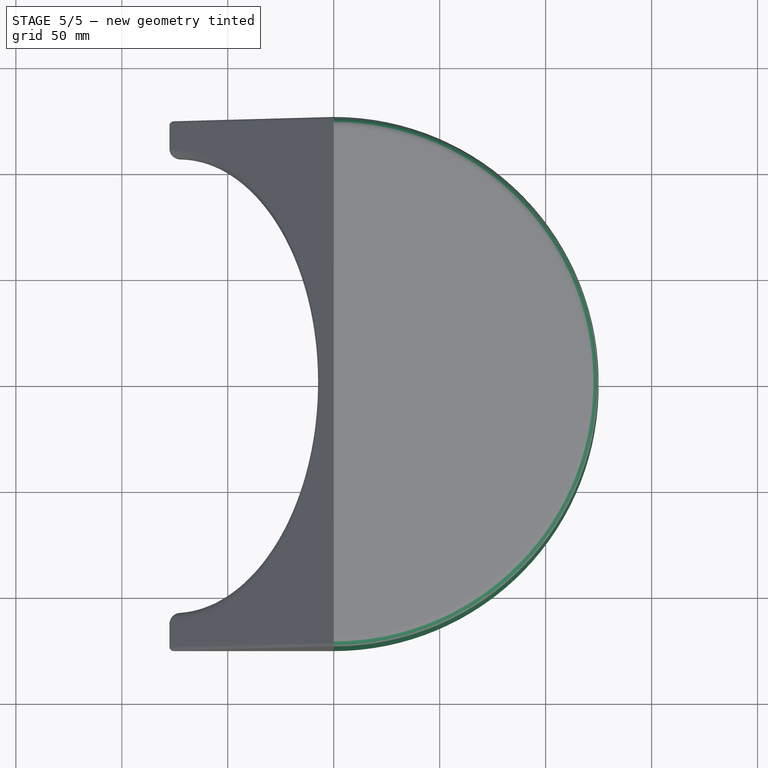
[diagram: stage 5 of 5 — top view after this stage's code; geometry added in this stage tinted green]
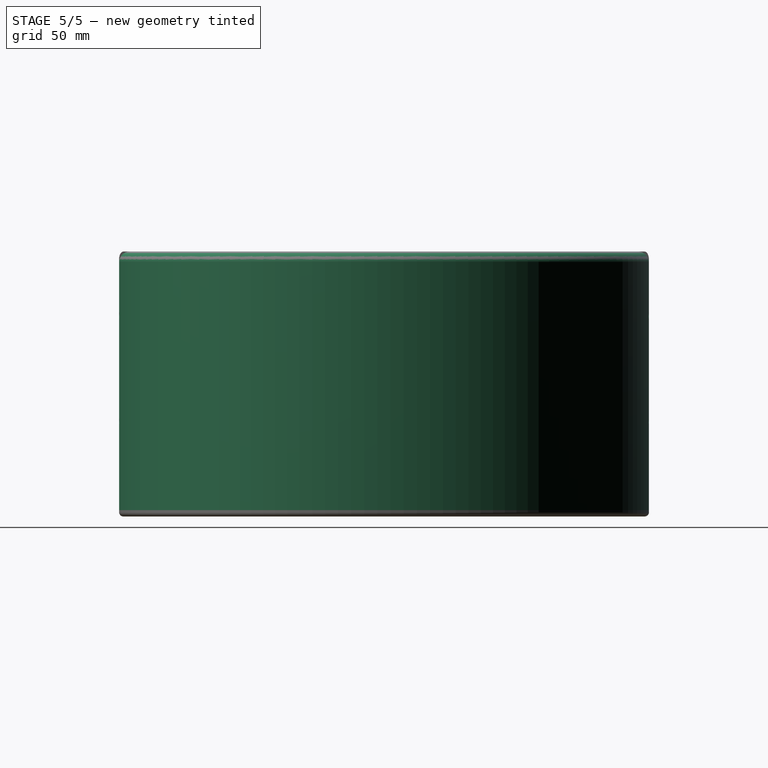
[diagram: stage 5 of 5 — right view after this stage's code; geometry added in this stage tinted green]
FEATURE [Sketcher::SketchObject] Sketch018
  AttachmentOffset = pos=(0,0,125) rot=(0,0,1;0rad)
  FullyConstrained = true
  MapMode = 5
  Placement = pos=(0,0,125) rot=(0,0,1;0rad)
  Support = -> [XY_Plane001]
  sketch-geometry (4):
    g0: ArcOfCircle CenterX=0 CenterY=0 CenterZ=0 NormalX=0 NormalY=0 NormalZ=1 AngleXU=0 Radius=122 StartAngle=4.71239 EndAngle=7.85398
    g1: ArcOfCircle CenterX=0 CenterY=0 CenterZ=0 NormalX=0 NormalY=0 NormalZ=1 AngleXU=0 Radius=125 StartAngle=4.71239 EndAngle=7.85398
    g2: LineSegment StartX=3.83e-14 StartY=125 StartZ=0 EndX=3.74e-14 EndY=122 EndZ=0
    g3: LineSegment StartX=-2.24e-14 StartY=-122 StartZ=0 EndX=-2.3e-14 EndY=-125 EndZ=0
  constraints (12):
    c: Coincident(g0,g-1)
    c: PointOnObject(g0,g-2)
    c: PointOnObject(g0,g-2)
    c: Coincident(g1,g0)
    c: PointOnObject(g1,g-2)
    c: PointOnObject(g1,g-2)
    c: Coincident(g2,g1)
    c: Coincident(g2,g0)
    c: Coincident(g3,g0)
    c: Coincident(g3,g1)
    c: Radius(g1) = 125
    c: Radius(g0) = 122
FEATURE [PartDesign::Pad] Pad006
  BaseFeature = -> Pad005
  Direction = (1,1,1)
  Length = 122
  Length2 = 100
  Profile = -> Sketch018
  Refine = true
  Reversed = true
  Type = 0
FEATURE [Sketcher::SketchObject] Sketch019
  AttachmentOffset = pos=(0,0,125) rot=(0,0,1;0rad)
  FullyConstrained = false
  MapMode = 5
  Placement = pos=(0,-125,2.78e-14) rot=(1,0,0;1.5708rad)
  Support = -> [XZ_Plane001]
  sketch-geometry (2):
    g0: Circle CenterX=5 CenterY=95 CenterZ=0 NormalX=0 NormalY=0 NormalZ=1 AngleXU=0 Radius=1.61136
    g1: Circle CenterX=5 CenterY=45 CenterZ=0 NormalX=0 NormalY=0 NormalZ=1 AngleXU=0 Radius=1.21573
  constraints (4):
    c: DistanceX(g-1,g1) = 5
    c: DistanceY(g-1,g1) = 45
    c: DistanceY(g-1,g0) = 95
    c: DistanceX(g-1,g0) = 5
FEATURE [PartDesign::Pocket] Pocket006
  BaseFeature = -> Pad006
  Length = 5
  Length2 = 100
  Profile = -> Sketch019
  Refine = true
  Type = 0
FEATURE [PartDesign::Mirrored] Mirrored002
  BaseFeature = -> Pocket006
  MirrorPlane = -> XZ_Plane001
  Originals = -> [Pocket006]
  Refine = true
FEATURE [PartDesign::Fillet] Fillet002
  Base = -> Mirrored002 [Edge16]
  BaseFeature = -> Mirrored002
  Radius = 5
  Refine = true
  SupportTransform = false
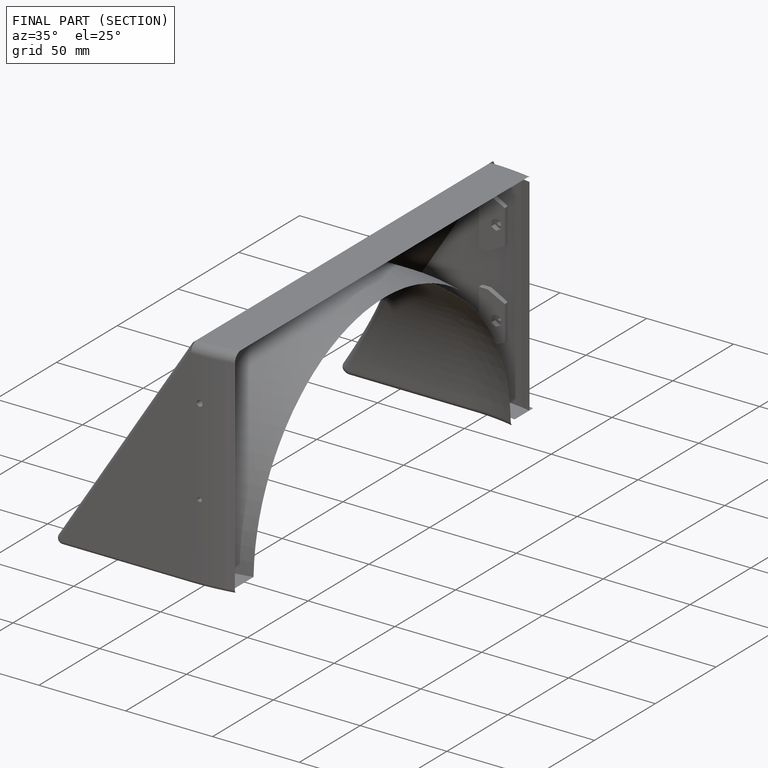
[diagram: finished part — half-section view (interior)]
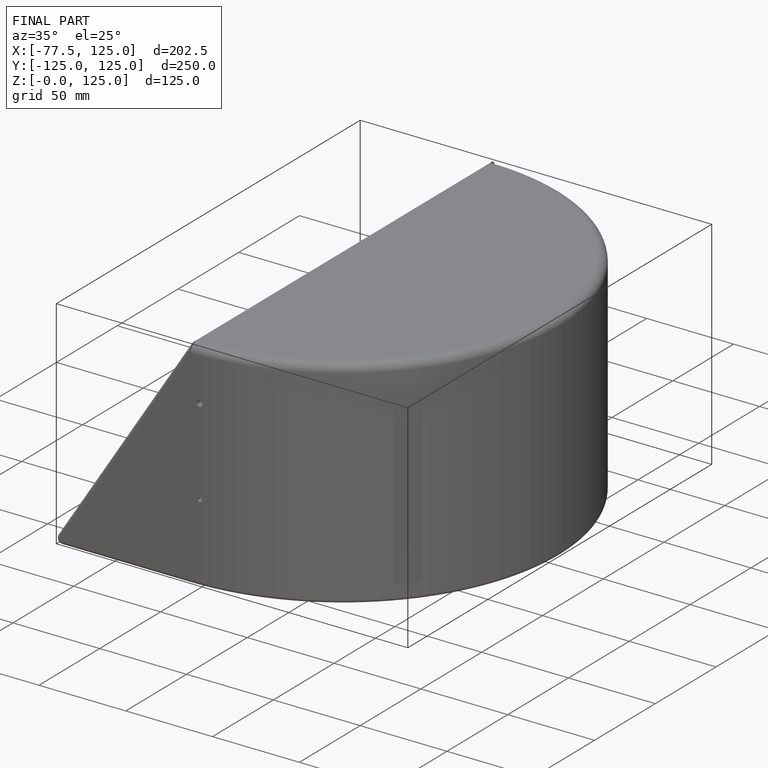
[diagram: finished part — iso view with bounding-box wireframe]
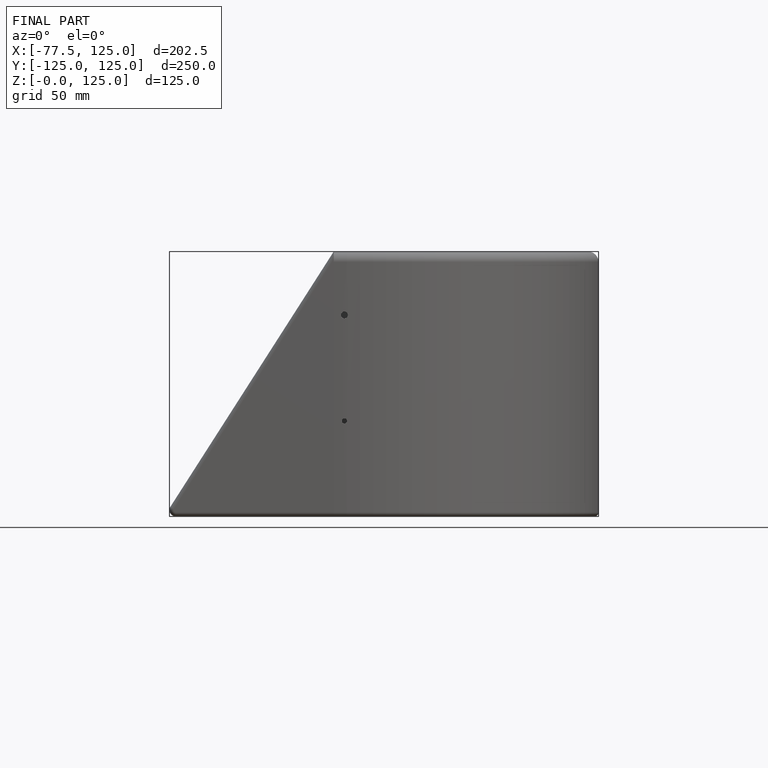
[diagram: finished part — front view with bounding-box wireframe]
